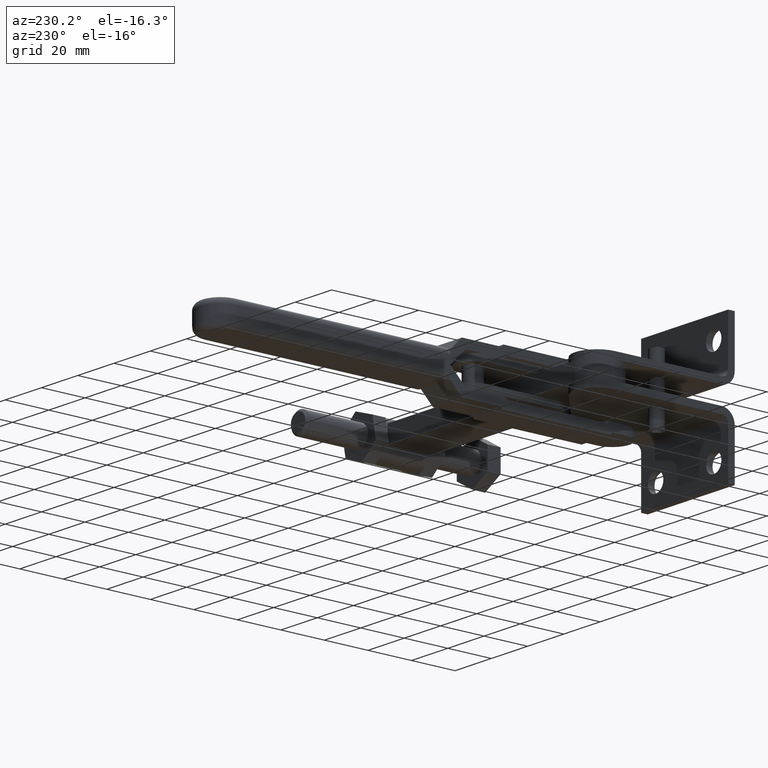
[diagram: clean part render]
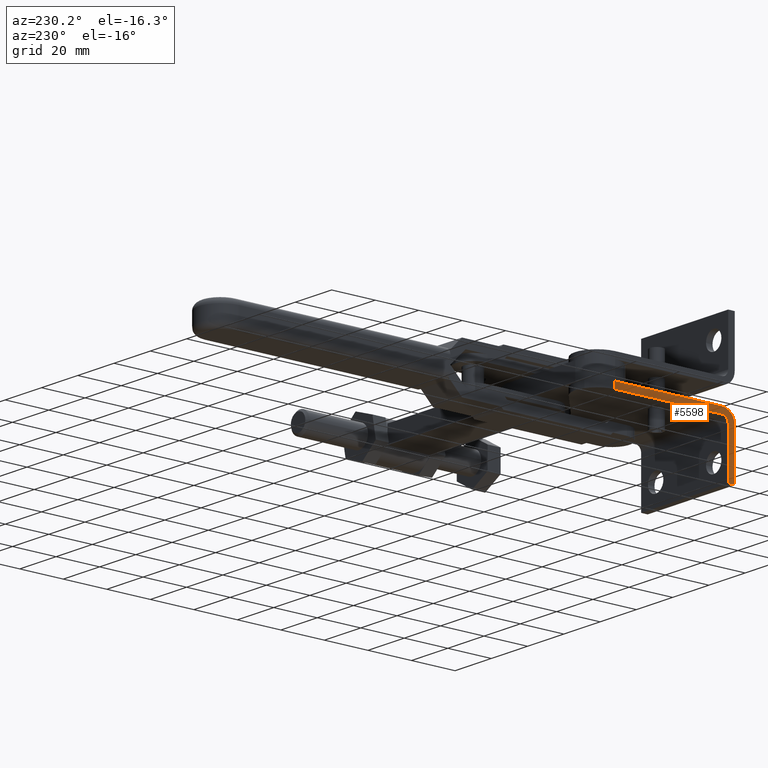
[diagram: same view with one face highlighted and labeled with its STEP entity id]
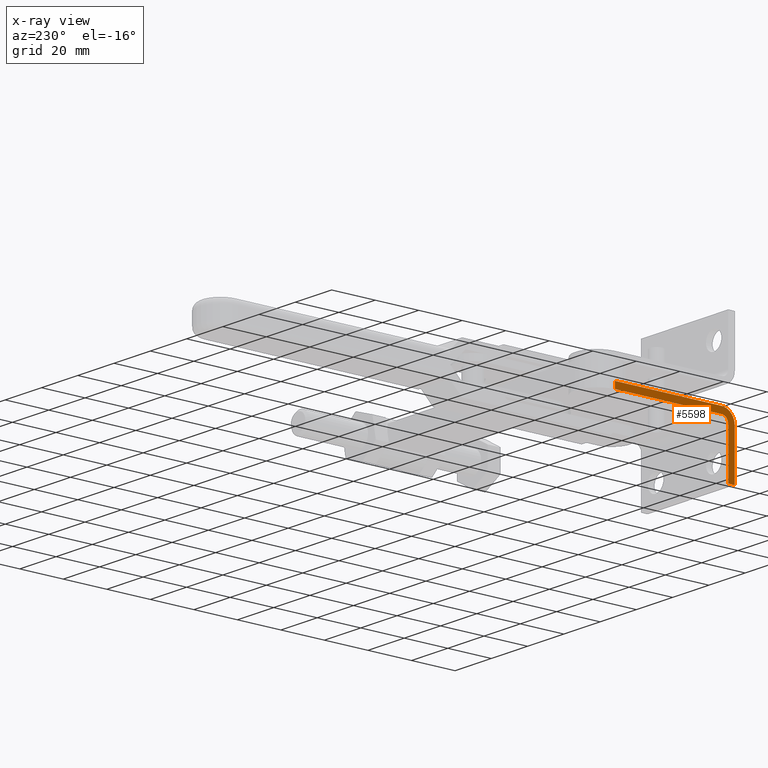
[diagram: x-ray of the same camera — body ghosted, the highlighted face saturated]
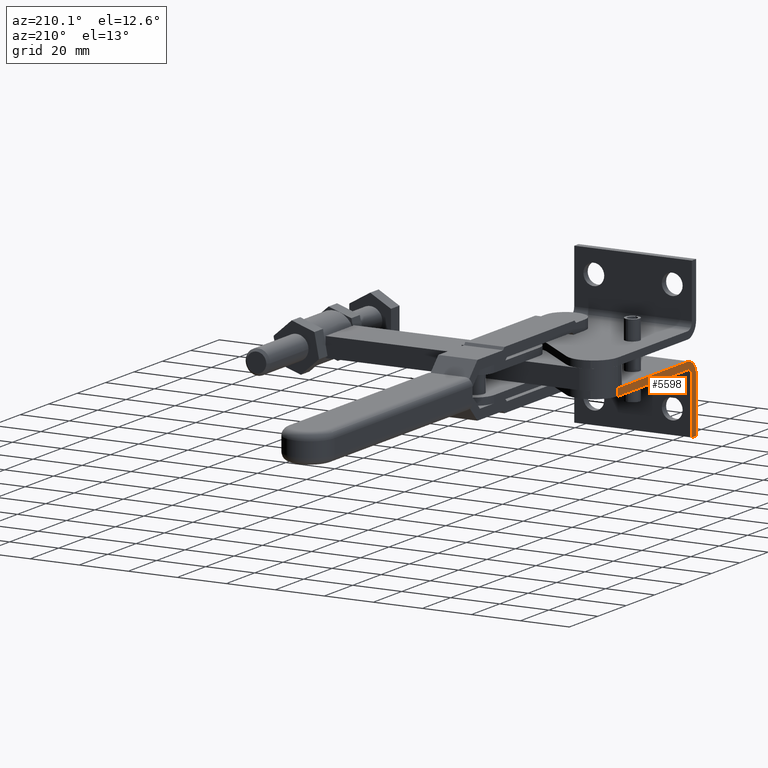
[diagram: same view with one face highlighted and labeled with its STEP entity id]
A machine part, auxiliary view. The second image highlights one B-rep face of the part: STEP entity #5598.
The next image is the same camera in x-ray: the body ghosted, the highlighted face saturated — about 0% of this face is hidden behind the body in this view.
A second angle (auxiliary view) of the same face is appended — the face is thin or edge-on in the first view.
In plain terms, the highlighted face is a freeform B-spline surface patch.
Its self-contained STEP definition (entity closure, byte-faithful):
#4113=CARTESIAN_POINT('',(-1012.357969662263300,68.970929238906791,-7.878679656440869));
#4114=VERTEX_POINT('',#4113);
#4123=CARTESIAN_POINT('',(-1012.357969662263300,71.092249582466422,-7.000000000000518));
#4124=VERTEX_POINT('',#4123);
#4125=CARTESIAN_POINT('',(-1012.357969662263300,71.092249582466422,-10.000000000000517));
#4126=DIRECTION('',(-1.000000000000000,5.619700E-016,-5.619700E-016));
#4127=DIRECTION('',(-7.947456E-016,-0.707106781186547,0.707106781186547));
#4128=AXIS2_PLACEMENT_3D('',#4125,#4126,#4127);
#4129=CIRCLE('',#4128,3.0);
#4130=EDGE_CURVE('',#4114,#4124,#4129,.T.);
#4174=CARTESIAN_POINT('',(-1012.357969662263400,66.849608895347131,-5.757359312881233));
#4175=VERTEX_POINT('',#4174);
#4184=CARTESIAN_POINT('',(-1012.357969660485100,65.092249582466422,-10.000000000000517));
#4185=VERTEX_POINT('',#4184);
#4186=CARTESIAN_POINT('',(-1012.357969662263300,71.092249582466422,-10.000000000000517));
#4187=DIRECTION('',(-1.000000000000000,5.619700E-016,-5.619700E-016));
#4188=DIRECTION('',(-7.947456E-016,-0.707106781186547,0.707106781186547));
#4189=AXIS2_PLACEMENT_3D('',#4186,#4187,#4188);
#4190=CIRCLE('',#4189,6.0);
#4191=EDGE_CURVE('',#4185,#4175,#4190,.T.);
#5381=CARTESIAN_POINT('',(-1012.357969662263300,71.092249582466422,-4.000000000000517));
#5382=VERTEX_POINT('',#5381);
#5438=CARTESIAN_POINT('',(-1012.357969662263100,120.092249585627400,-4.000000000000517));
#5439=VERTEX_POINT('',#5438);
#5447=CARTESIAN_POINT('',(-1012.357969662263100,120.092249585627400,-4.000000000000517));
#5448=DIRECTION('',(0.0,-1.0,0.0));
#5449=VECTOR('',#5448,49.000000003160977);
#5450=LINE('',#5447,#5449);
#5451=EDGE_CURVE('',#5439,#5382,#5450,.T.);
#5532=CARTESIAN_POINT('',(-1012.357969662263300,71.092249582466422,-10.000000000000517));
#5533=DIRECTION('',(-1.000000000000000,5.619700E-016,-5.619700E-016));
#5534=DIRECTION('',(-7.947456E-016,-0.707106781186547,0.707106781186547));
#5535=AXIS2_PLACEMENT_3D('',#5532,#5533,#5534);
#5536=CIRCLE('',#5535,6.0);
#5537=EDGE_CURVE('',#4175,#5382,#5536,.T.);
#5542=CARTESIAN_POINT('',(-1012.357969662263300,120.092249585627400,-4.000000000000517));
#5543=CARTESIAN_POINT('',(-1012.357969662263300,120.092249585627400,-32.000000000000519));
#5544=CARTESIAN_POINT('',(-1012.357969662263300,65.092249582466422,-4.000000000000517));
#5545=CARTESIAN_POINT('',(-1012.357969662263300,65.092249582466422,-32.000000000000519));
#5546=B_SPLINE_SURFACE_WITH_KNOTS('',1,1,((#5542,#5544),(#5543,#5545)),.UNSPECIFIED.,.F.,.F.,.U.,(2,2),(2,2),(0.0,28.0),(0.0,55.000000003160977),.UNSPECIFIED.);
#5547=ORIENTED_EDGE('',*,*,#4191,.T.);
#5548=ORIENTED_EDGE('',*,*,#5537,.T.);
#5549=ORIENTED_EDGE('',*,*,#5451,.F.);
#5550=CARTESIAN_POINT('',(-1012.357969662263100,120.092249585627400,-7.000000000000518));
#5551=VERTEX_POINT('',#5550);
#5552=CARTESIAN_POINT('',(-1012.357969662263100,120.092249585627400,-4.000000000000517));
#5553=DIRECTION('',(0.0,0.0,-1.0));
#5554=VECTOR('',#5553,3.000000000000001);
#5555=LINE('',#5552,#5554);
#5556=EDGE_CURVE('',#5439,#5551,#5555,.T.);
#5557=ORIENTED_EDGE('',*,*,#5556,.T.);
#5558=CARTESIAN_POINT('',(-1012.357969662263300,71.092249582466422,-7.000000000000518));
#5559=DIRECTION('',(0.0,1.0,0.0));
#5560=VECTOR('',#5559,49.000000003160977);
#5561=LINE('',#5558,#5560);
#5562=EDGE_CURVE('',#4124,#5551,#5561,.T.);
#5563=ORIENTED_EDGE('',*,*,#5562,.F.);
#5564=ORIENTED_EDGE('',*,*,#4130,.F.);
#5565=CARTESIAN_POINT('',(-1012.357969660485100,68.092249582466422,-10.000000000000517));
#5566=VERTEX_POINT('',#5565);
#5567=CARTESIAN_POINT('',(-1012.357969662263300,71.092249582466422,-10.000000000000517));
#5568=DIRECTION('',(-1.000000000000000,5.619700E-016,-5.619700E-016));
#5569=DIRECTION('',(-7.947456E-016,-0.707106781186547,0.707106781186547));
#5570=AXIS2_PLACEMENT_3D('',#5567,#5568,#5569);
#5571=CIRCLE('',#5570,3.0);
#5572=EDGE_CURVE('',#5566,#4114,#5571,.T.);
#5573=ORIENTED_EDGE('',*,*,#5572,.F.);
#5574=CARTESIAN_POINT('',(-1012.357969660485100,68.092249582466422,-32.000000000000519));
#5575=VERTEX_POINT('',#5574);
#5576=CARTESIAN_POINT('',(-1012.357969660485100,68.092249582466422,-32.000000000000519));
#5577=DIRECTION('',(0.0,0.0,1.0));
#5578=VECTOR('',#5577,22.0);
#5579=LINE('',#5576,#5578);
#5580=EDGE_CURVE('',#5575,#5566,#5579,.T.);
#5581=ORIENTED_EDGE('',*,*,#5580,.F.);
#5582=CARTESIAN_POINT('',(-1012.357969660485100,65.092249582466422,-32.000000000000519));
#5583=VERTEX_POINT('',#5582);
#5584=CARTESIAN_POINT('',(-1012.357969660485100,65.092249582466422,-32.000000000000519));
#5585=DIRECTION('',(0.0,1.0,0.0));
#5586=VECTOR('',#5585,3.0);
#5587=LINE('',#5584,#5586);
#5588=EDGE_CURVE('',#5583,#5575,#5587,.T.);
#5589=ORIENTED_EDGE('',*,*,#5588,.F.);
#5590=CARTESIAN_POINT('',(-1012.357969660485100,65.092249582466422,-32.000000000000519));
#5591=DIRECTION('',(0.0,0.0,1.0));
#5592=VECTOR('',#5591,22.0);
#5593=LINE('',#5590,#5592);
#5594=EDGE_CURVE('',#5583,#4185,#5593,.T.);
#5595=ORIENTED_EDGE('',*,*,#5594,.T.);
#5596=EDGE_LOOP('',(#5547,#5548,#5549,#5557,#5563,#5564,#5573,#5581,#5589,#5595));
#5597=FACE_OUTER_BOUND('',#5596,.T.);
#5598=ADVANCED_FACE('',(#5597),#5546,.T.);